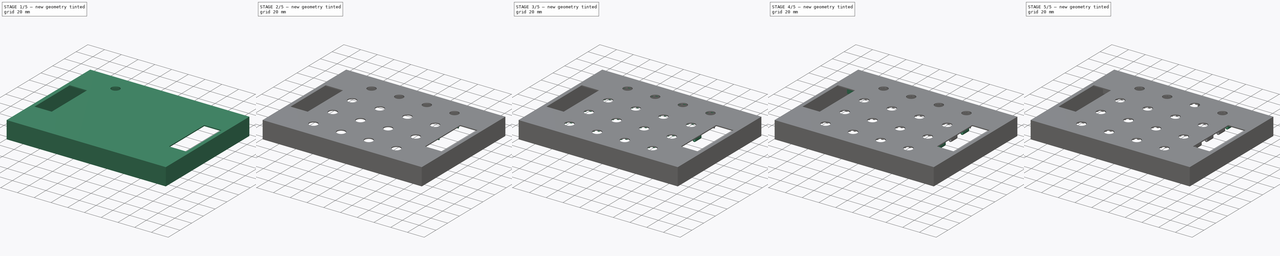
[diagram: build sequence overview — one tinted view per stage of 5, left to right]
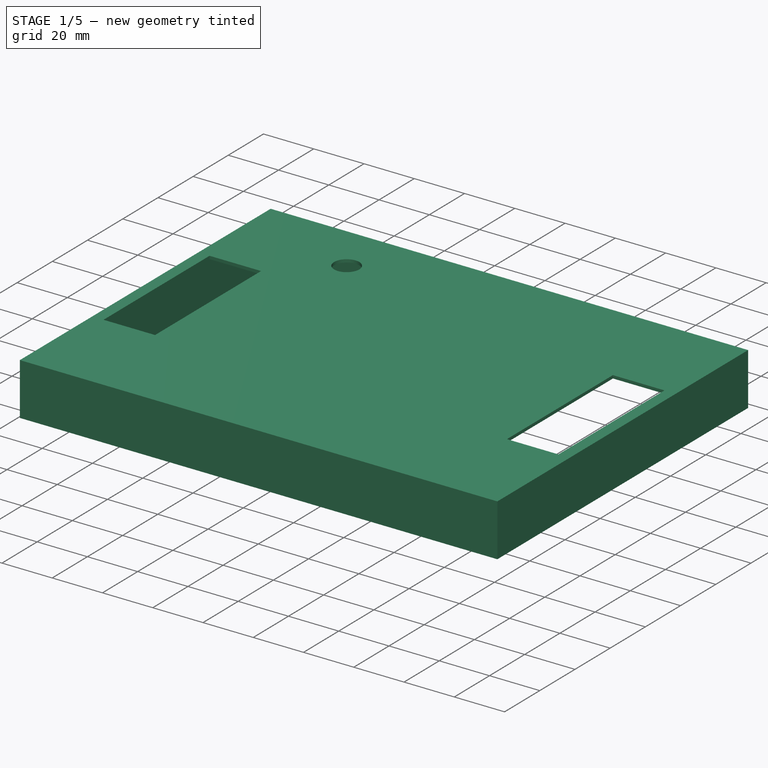
[diagram: stage 1 of 5 — iso view after this stage's code; geometry added in this stage tinted green]
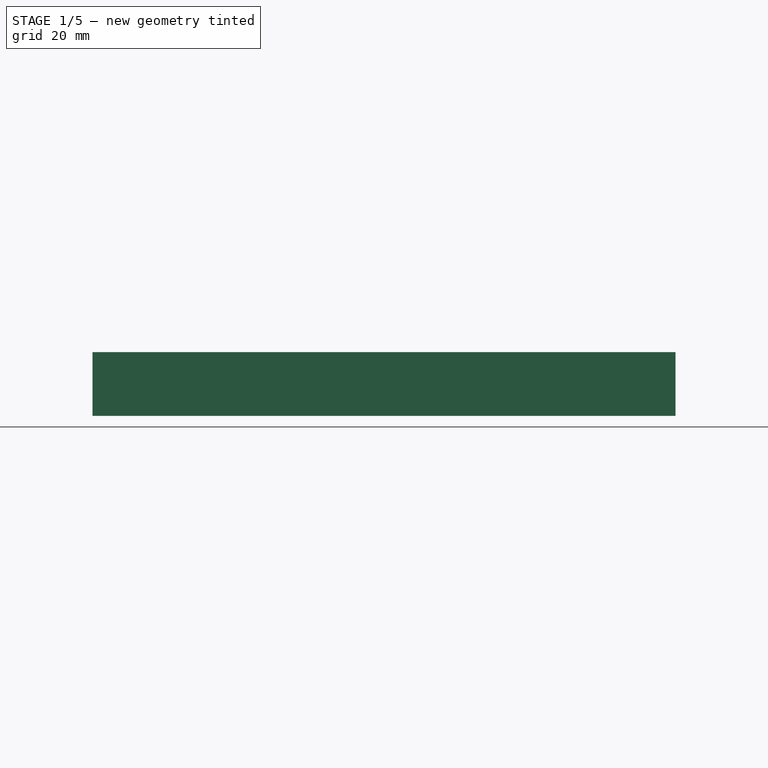
[diagram: stage 1 of 5 — front view after this stage's code; geometry added in this stage tinted green]
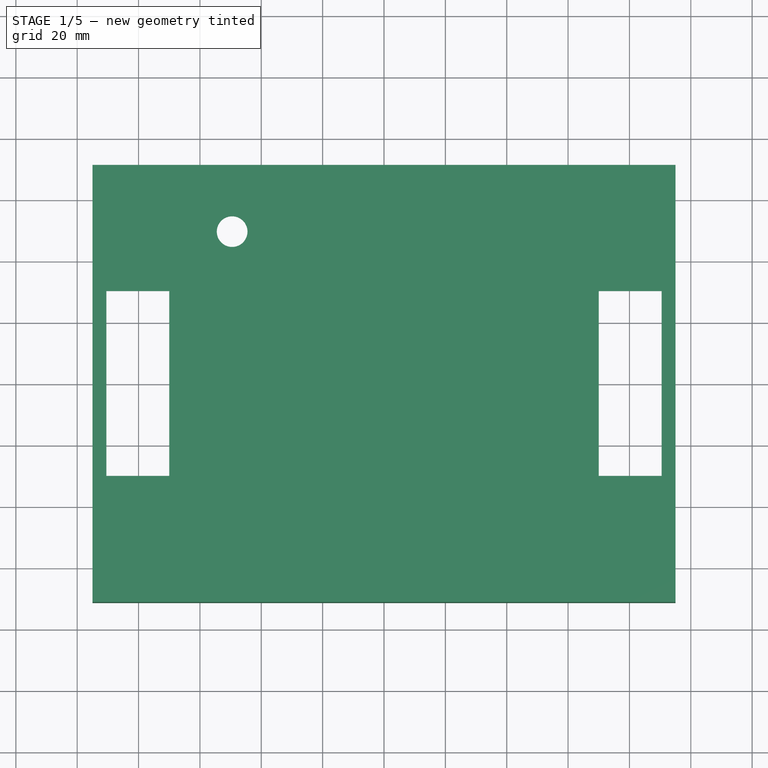
[diagram: stage 1 of 5 — top view after this stage's code; geometry added in this stage tinted green]
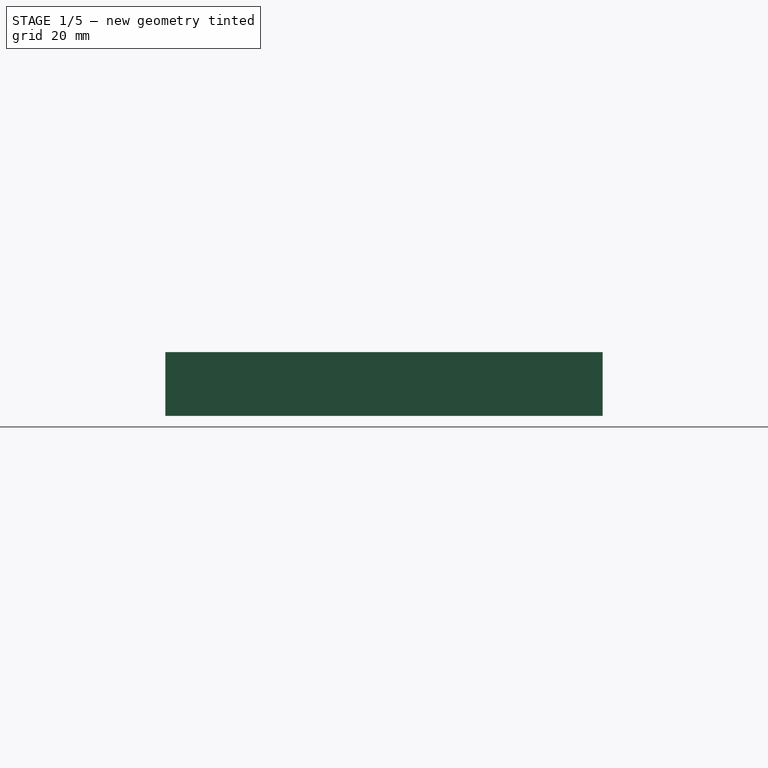
[diagram: stage 1 of 5 — right view after this stage's code; geometry added in this stage tinted green]
FCSTD DOCUMENT  (FreeCAD 1.0R39109 (Git))
Label: v1_all_clear
License: All rights reserved
LicenseURL: https://en.wikipedia.org/wiki/All_rights_reserved
objects: Sketcher::SketchObject×11, PartDesign::Pad×9, PartDesign::LinearPattern×7, PartDesign::MultiTransform×5, PartDesign::Mirrored×4, PartDesign::PolarPattern×2, PartDesign::Pocket×2, PartDesign::Plane×2, Spreadsheet::Sheet×1, PartDesign::Line×1, PartDesign::Chamfer×1, PartDesign::Body×1
note: 98 computed .brp shape members not serialized (recipe doc carries the construction recipe); baked Part::Feature solids carry a one-line shape summary decoded from their .brp

FEATURE [Sketcher::SketchObject] Sketch
  ArcFitTolerance = 1e-06
  AttachmentSupport = -> [XY_Plane]
  FullyConstrained = true
  MakeInternals = false
  MapMode = 5
  expr: Constraints[25] = <<sizes>>.insertDia
  expr: Constraints[8] = 2 * <<sizes>>.mfGrid
  expr: Constraints[9] = 2 * <<sizes>>.mfGrid
  sketch-geometry (14):
    g0: LineSegment [constr] StartX=-33 StartY=33 StartZ=0 EndX=-33 EndY=-33 EndZ=0
    g1: LineSegment [constr] StartX=-33 StartY=-33 StartZ=0 EndX=33 EndY=-33 EndZ=0
    g2: LineSegment [constr] StartX=33 StartY=-33 StartZ=0 EndX=33 EndY=33 EndZ=0
    g3: LineSegment [constr] StartX=33 StartY=33 StartZ=0 EndX=-33 EndY=33 EndZ=0
    g4: Circle CenterX=-33 CenterY=33 CenterZ=0 NormalX=0 NormalY=0 NormalZ=1 AngleXU=0 Radius=3
    g5: Circle CenterX=33 CenterY=33 CenterZ=0 NormalX=0 NormalY=0 NormalZ=1 AngleXU=0 Radius=3
    g6: Circle CenterX=33 CenterY=-33 CenterZ=0 NormalX=0 NormalY=0 NormalZ=1 AngleXU=0 Radius=3
    g7: Circle CenterX=-33 CenterY=-33 CenterZ=0 NormalX=0 NormalY=0 NormalZ=1 AngleXU=0 Radius=3
    g8: Circle CenterX=-33 CenterY=-33 CenterZ=0 NormalX=0 NormalY=0 NormalZ=1 AngleXU=0 Radius=2.1
    g9: Circle CenterX=-33 CenterY=33 CenterZ=0 NormalX=0 NormalY=0 NormalZ=1 AngleXU=0 Radius=2.1
    g10: Circle CenterX=33 CenterY=33 CenterZ=0 NormalX=0 NormalY=0 NormalZ=1 AngleXU=0 Radius=2.1
    g11: Circle CenterX=33 CenterY=-33 CenterZ=0 NormalX=0 NormalY=0 NormalZ=1 AngleXU=0 Radius=2.1
    g12: Circle CenterX=0 CenterY=0 CenterZ=0 NormalX=0 NormalY=0 NormalZ=1 AngleXU=0 Radius=3
    g13: Circle CenterX=0 CenterY=0 CenterZ=0 NormalX=0 NormalY=0 NormalZ=1 AngleXU=0 Radius=2.1
  constraints (31):
    c: Coincident(g0,g1)
    c: Coincident(g1,g2)
    c: Coincident(g2,g3)
    c: Coincident(g3,g0)
    c: Vertical(g0)
    c: Vertical(g2)
    c: Horizontal(g1)
    c: Horizontal(g3)
    c: Distance(g0,g2) = 66
    c: Distance(g1,g3) = 66
    c: Symmetric(g0,g1,g-1)
    c: Coincident(g4,g0)
    c: Coincident(g5,g2)
    c: Coincident(g6,g1)
    c: Coincident(g7,g0)
    c: Coincident(g8,g0)
    c: Coincident(g9,g0)
    c: Coincident(g10,g2)
    c: Coincident(g11,g1)
    c: Equal(g11,g10)
    c: Equal(g10,g9)
    c: Equal(g9,g8)
    c: Equal(g7,g4)
    c: Equal(g4,g5)
    c: Equal(g5,g6)
    c: Diameter(g11) = 4.2
    c: Diameter(g6) = 6
    c: Coincident(g12,g-1)
    c: Coincident(g13,g12)
    c: Equal(g13,g9)
    c: Equal(g12,g4)
FEATURE [Spreadsheet::Sheet] Spreadsheet  label="sizes"
  cells = A1='midifighter grid spacing; B1(mfGrid)=33; D1='height over pcb; E1(heightOver)=5; A2='encoder hole dia; B2(encoderHoleDia)=7.5; D2='pcb thickness; E2(pcbThickness)=1.6; A3='led ring dia; B3(ledRingDia)=24; D3='height under pcb; E3(heightUnder)=13; A4='led angle range; B4(ledAngleRange)=265; A5='led count; B5(ledCount)=11; D5='usb port width; E5(usbPortWidth)=12; A6='m3 insert dia; B6(insertDia)=4.2; D6='usb port height; E6=11; A7='led height; B7(ledHeight)=1.5; D7='button spacing; E7(buttonSpacing)=20; A8='rib extra gap; B8(ribExtraGap)=0.5; D8='button height under pcb; E8=4
FEATURE [Sketcher::SketchObject] Sketch001
  ArcFitTolerance = 1e-06
  AttachmentSupport = -> [XY_Plane]
  FullyConstrained = true
  MakeInternals = false
  MapMode = 5
  expr: Constraints[18] = <<sizes>>.buttonSpacing + 0.5
  expr: Constraints[19] = <<sizes>>.buttonSpacing * 3 + 0.25
  expr: Constraints[9] = 140 + 2 * <<sizes>>.buttonSpacing + 10
  sketch-geometry (12):
    g0: LineSegment StartX=-95 StartY=71.25 StartZ=0 EndX=-95 EndY=-71.25 EndZ=0
    g1: LineSegment StartX=-95 StartY=-71.25 StartZ=0 EndX=95 EndY=-71.25 EndZ=0
    g2: LineSegment StartX=95 StartY=-71.25 StartZ=0 EndX=95 EndY=71.25 EndZ=0
    g3: LineSegment StartX=95 StartY=71.25 StartZ=0 EndX=-95 EndY=71.25 EndZ=0
    g4: LineSegment StartX=-70 StartY=30.125 StartZ=0 EndX=-90.5 EndY=30.125 EndZ=0
    g5: LineSegment StartX=-90.5 StartY=30.125 StartZ=0 EndX=-90.5 EndY=-30.125 EndZ=0
    g6: LineSegment StartX=-90.5 StartY=-30.125 StartZ=0 EndX=-70 EndY=-30.125 EndZ=0
    g7: LineSegment StartX=-70 StartY=-30.125 StartZ=0 EndX=-70 EndY=30.125 EndZ=0
    g8: LineSegment StartX=70 StartY=30.125 StartZ=0 EndX=70 EndY=-30.125 EndZ=0
    g9: LineSegment StartX=70 StartY=-30.125 StartZ=0 EndX=90.5 EndY=-30.125 EndZ=0
    g10: LineSegment StartX=90.5 StartY=-30.125 StartZ=0 EndX=90.5 EndY=30.125 EndZ=0
    g11: LineSegment StartX=90.5 StartY=30.125 StartZ=0 EndX=70 EndY=30.125 EndZ=0
  constraints (33):
    c: Coincident(g0,g1)
    c: Coincident(g1,g2)
    c: Coincident(g2,g3)
    c: Coincident(g3,g0)
    c: Vertical(g0)
    c: Vertical(g2)
    c: Horizontal(g1)
    c: Horizontal(g3)
    c: Symmetric(g0,g1,g-1)
    c: DistanceX(g3,g3) = 190
    c: DistanceY(g0,g0) = 142.5
    c: Coincident(g4,g5)
    c: Coincident(g5,g6)
    c: Coincident(g6,g7)
    c: Coincident(g7,g4)
    c: Horizontal(g4)
    c: Horizontal(g6)
    c: Vertical(g5)
    c: Distance(g5,g7) = 20.5
    c: Distance(g4,g6) = 60.25
    c: Symmetric(g6,g4,g-1)
    c: DistanceX(g6) = -70
    c: Coincident(g8,g9)
    c: Coincident(g9,g10)
    c: Coincident(g10,g11)
    c: Coincident(g11,g8)
    c: Vertical(g8)
    c: Vertical(g10)
    c: Horizontal(g9)
    c: Horizontal(g11)
    c: PointOnObject(g8,g6)
    c: Equal(g9,g6)
    c: Symmetric(g4,g8,g-2)
FEATURE [PartDesign::Pad] Pad001
  Direction = (0,0,1)
  Length = 1.2
  Length2 = 10
  Profile = -> Sketch001
  ReferenceAxis = -> Sketch001 [N_Axis]
  Refine = true
  Suppressed = false
  Type = 0
FEATURE [Sketcher::SketchObject] Sketch002
  ArcFitTolerance = 1e-06
  AttachmentSupport = -> [XY_Plane]
  FullyConstrained = true
  MakeInternals = false
  MapMode = 5
  expr: Constraints[1] = -1.5 * <<sizes>>.mfGrid
  expr: Constraints[2] = 1.5 * <<sizes>>.mfGrid
  sketch-geometry (1):
    g0: Circle CenterX=-49.5 CenterY=49.5 CenterZ=0 NormalX=0 NormalY=0 NormalZ=1 AngleXU=0 Radius=5
  constraints (3):
    c: Diameter(g0) = 10
    c: DistanceX(g0) = -49.5
    c: DistanceY(g0) = 49.5
FEATURE [PartDesign::LinearPattern] LinearPattern
  Direction = -> Sketch002 [H_Axis]
  Length = 99
  Mode = 1
  Occurrences = 4
  Offset = 33
  Refine = true
  Suppressed = false
  TransformMode = 0
  expr: Offset = <<sizes>>.mfGrid
FEATURE [PartDesign::LinearPattern] LinearPattern001
  Direction = -> Sketch002 [V_Axis]
  Length = 99
  Mode = 1
  Occurrences = 4
  Offset = 33
  Refine = true
  Reversed = true
  Suppressed = false
  TransformMode = 0
  expr: Offset = <<sizes>>.mfGrid
FEATURE [Sketcher::SketchObject] Sketch003
  ArcFitTolerance = 1e-06
  AttachmentSupport = -> [XY_Plane]
  FullyConstrained = true
  MakeInternals = false
  MapMode = 5
  expr: Constraints[19] = <<sizes>>.mfGrid * 2 - <<sizes>>.insertDia * 1.2
  expr: Constraints[30] = -0.6 * <<sizes>>.insertDia
  expr: Constraints[41] = 1.2 * <<sizes>>.insertDia
  expr: Constraints[9] = 2 * <<sizes>>.mfGrid
  sketch-geometry (20):
    g0: LineSegment [constr] StartX=-33 StartY=33 StartZ=0 EndX=-33 EndY=-33 EndZ=0
    g1: LineSegment [constr] StartX=-33 StartY=-33 StartZ=0 EndX=33 EndY=-33 EndZ=0
    g2: LineSegment [constr] StartX=33 StartY=-33 StartZ=0 EndX=33 EndY=33 EndZ=0
    g3: LineSegment [constr] StartX=33 StartY=33 StartZ=0 EndX=-33 EndY=33 EndZ=0
    g4: LineSegment StartX=-30.48 StartY=33.6 StartZ=0 EndX=-30.48 EndY=32.4 EndZ=0
    g5: LineSegment StartX=-30.48 StartY=32.4 StartZ=0 EndX=30.48 EndY=32.4 EndZ=0
    g6: LineSegment StartX=30.48 StartY=32.4 StartZ=0 EndX=30.48 EndY=33.6 EndZ=0
    g7: LineSegment StartX=30.48 StartY=33.6 StartZ=0 EndX=-30.48 EndY=33.6 EndZ=0
    g8: LineSegment StartX=-2.52 StartY=0.6 StartZ=0 EndX=-66 EndY=0.6 EndZ=0
    g9: LineSegment StartX=-66 StartY=0.6 StartZ=0 EndX=-66 EndY=-0.6 EndZ=0
    g10: LineSegment StartX=-66 StartY=-0.6 StartZ=0 EndX=-2.52 EndY=-0.6 EndZ=0
    g11: LineSegment StartX=-2.52 StartY=-0.6 StartZ=0 EndX=-2.52 EndY=0.6 EndZ=0
    g12: LineSegment StartX=-66 StartY=33.6 StartZ=0 EndX=-66 EndY=32.4 EndZ=0
    g13: LineSegment StartX=-66 StartY=32.4 StartZ=0 EndX=-35.52 EndY=32.4 EndZ=0
    g14: LineSegment StartX=-35.52 StartY=32.4 StartZ=0 EndX=-35.52 EndY=33.6 EndZ=0
    g15: LineSegment StartX=-35.52 StartY=33.6 StartZ=0 EndX=-66 EndY=33.6 EndZ=0
    g16: LineSegment StartX=35.52 StartY=33.6 StartZ=0 EndX=35.52 EndY=32.4 EndZ=0
    g17: LineSegment StartX=35.52 StartY=32.4 StartZ=0 EndX=66 EndY=32.4 EndZ=0
    g18: LineSegment StartX=66 StartY=32.4 StartZ=0 EndX=66 EndY=33.6 EndZ=0
    g19: LineSegment StartX=66 StartY=33.6 StartZ=0 EndX=35.52 EndY=33.6 EndZ=0
  constraints (54):
    c: Coincident(g0,g1)
    c: Coincident(g1,g2)
    c: Coincident(g2,g3)
    c: Coincident(g3,g0)
    c: Vertical(g0)
    c: Vertical(g2)
    c: Horizontal(g1)
    c: Horizontal(g3)
    c: Symmetric(g0,g1,g-1)
    c: DistanceX(g3,g3) = 66
    c: Equal(g3,g0)
    c: Coincident(g4,g5)
    c: Coincident(g5,g6)
    c: Coincident(g6,g7)
    c: Coincident(g7,g4)
    c: Vertical(g4)
    c: Horizontal(g5)
    c: Symmetric(g5,g6,g3)
    c: Symmetric(g4,g6,g-2)
    c: DistanceX(g7,g7) = 60.96
    c: Coincident(g8,g9)
    c: Coincident(g9,g10)
    c: Coincident(g10,g11)
    c: Coincident(g11,g8)
    c: Horizontal(g8)
    c: Horizontal(g10)
    c: Vertical(g11)
    c: Symmetric(g9,g8,g-1)
    c: DistanceY(g4,g4) = 1.2
    c: DistanceY(g9,g9) = 1.2
    c: DistanceX(g8) = -2.52
    c: Coincident(g12,g13)
    c: Coincident(g13,g14)
    c: Coincident(g14,g15)
    c: Coincident(g15,g12)
    c: Vertical(g12)
    c: Vertical(g14)
    c: Horizontal(g13)
    c: Horizontal(g15)
    c: PointOnObject(g13,g5)
    c: PointOnObject(g14,g7)
    c: Distance(g14,g4) = 5.04
    c: PointOnObject(g8,g12)
    c: Coincident(g16,g17)
    c: Coincident(g17,g18)
    c: Coincident(g18,g19)
    c: Coincident(g19,g16)
    c: Vertical(g16)
    c: Vertical(g18)
    c: Horizontal(g17)
    c: PointOnObject(g16,g5)
    c: Symmetric(g16,g14,g-2)
    c: Symmetric(g12,g18,g-2)
    c: DistanceX(g8) = -66
FEATURE [Sketcher::SketchObject] Sketch004
  ArcFitTolerance = 1e-06
  AttachmentSupport = -> [XY_Plane]
  FullyConstrained = true
  MakeInternals = false
  MapMode = 5
  expr: Constraints[0] = <<sizes>>.ledAngleRange
  expr: Constraints[8] = <<sizes>>.mfGrid * 1.5
  expr: Constraints[9] = <<sizes>>.ledRingDia
  sketch-geometry (6):
    g0: ArcOfCircle [constr] CenterX=-49.5 CenterY=49.5 CenterZ=0 NormalX=0 NormalY=0 NormalZ=1 AngleXU=0 Radius=12 StartAngle=5.54142 EndAngle=10.1665
    g1: LineSegment [constr] StartX=-49.5 StartY=49.5 StartZ=0 EndX=-49.5 EndY=0 EndZ=0
    g2: LineSegment [constr] StartX=-49.5 StartY=49.5 StartZ=0 EndX=0 EndY=49.5 EndZ=0
    g3: LineSegment [constr] StartX=-58.3473 StartY=41.3929 StartZ=0 EndX=-40.6527 EndY=41.3929 EndZ=0
    g4: Circle [constr] CenterX=-58.3473 CenterY=41.3929 CenterZ=0 NormalX=0 NormalY=0 NormalZ=1 AngleXU=0 Radius=3.5
    g5: Circle CenterX=-58.3473 CenterY=41.3929 CenterZ=0 NormalX=0 NormalY=0 NormalZ=1 AngleXU=0 Radius=1.5
  constraints (17):
    c: Angle(g0) = 4.62512
    c: Coincident(g1,g0)
    c: PointOnObject(g1,g-1)
    c: Vertical(g1)
    c: Coincident(g2,g0)
    c: PointOnObject(g2,g-2)
    c: Horizontal(g2)
    c: Equal(g2,g1)
    c: DistanceY(g1,g1) = 49.5
    c: Diameter(g0) = 24
    c: Coincident(g3,g0)
    c: Coincident(g3,g0)
    c: Horizontal(g3)
    c: Diameter(g4) = 7
    c: Coincident(g4,g0)
    c: Diameter(g5) = 3
    c: Coincident(g5,g0)
FEATURE [PartDesign::Line] DatumLine
  AttacherType = Attacher::AttachEngineLine
  AttachmentOffset = pos=(-49.5,49.5,0) rot=(0,0,1;0rad)
  AttachmentSupport = -> [Z_Axis]
  Length = 20
  MapMode = 29
  Placement = pos=(-49.5,49.5,0) rot=(0,0,1;0rad)
  ResizeMode = 0
  expr: .AttachmentOffset.Base.x = -<<sizes>>.mfGrid * 1.5
  expr: .AttachmentOffset.Base.y = <<sizes>>.mfGrid * 1.5
FEATURE [PartDesign::PolarPattern] PolarPattern001
  Angle = 265
  Axis = -> DatumLine
  Mode = 0
  Occurrences = 11
  Offset = 120
  Refine = true
  Reversed = true
  Suppressed = false
  TransformMode = 0
  expr: Angle = <<sizes>>.ledAngleRange
  expr: Occurrences = <<sizes>>.ledCount
FEATURE [PartDesign::LinearPattern] LinearPattern002
  Direction = -> Sketch004 [H_Axis]
  Length = 99
  Mode = 1
  Occurrences = 4
  Offset = 33
  Refine = true
  Suppressed = false
  TransformMode = 0
  expr: Offset = <<sizes>>.mfGrid
FEATURE [PartDesign::LinearPattern] LinearPattern003
  Direction = -> Sketch004 [V_Axis]
  Length = 99
  Mode = 1
  Occurrences = 4
  Offset = 33
  Refine = true
  Reversed = true
  Suppressed = false
  TransformMode = 0
  expr: Offset = <<sizes>>.mfGrid
FEATURE [Sketcher::SketchObject] Sketch005
  ArcFitTolerance = 1e-06
  AttachmentSupport = -> [XZ_Plane]
  FullyConstrained = true
  MakeInternals = false
  MapMode = 5
  Placement = pos=(0,0,0) rot=(1,0,0;1.5708rad)
  sketch-geometry (11):
    g0: Circle [constr] CenterX=68 CenterY=-2.25 CenterZ=0 NormalX=0 NormalY=0 NormalZ=1 AngleXU=0 Radius=2
    g1: LineSegment [constr] StartX=0 StartY=-0.25 StartZ=0 EndX=68 EndY=-0.25 EndZ=0
    g2: LineSegment [constr] StartX=0 StartY=-4.25 StartZ=0 EndX=68 EndY=-4.25 EndZ=0
    g3: Circle [constr] CenterX=-68 CenterY=-2.25 CenterZ=0 NormalX=0 NormalY=0 NormalZ=1 AngleXU=0 Radius=2
    g4: LineSegment [constr] StartX=-68 StartY=-2.25 StartZ=0 EndX=68 EndY=-2.25 EndZ=0
    g5: Circle CenterX=68 CenterY=-2.25 CenterZ=0 NormalX=0 NormalY=0 NormalZ=1 AngleXU=0 Radius=1.1
    g6: Circle [constr] CenterX=-68 CenterY=-2.25 CenterZ=0 NormalX=0 NormalY=0 NormalZ=1 AngleXU=0 Radius=1
    g7: ArcOfCircle CenterX=68 CenterY=-2.25 CenterZ=0 NormalX=0 NormalY=0 NormalZ=1 AngleXU=0 Radius=2 StartAngle=3.14159 EndAngle=6.28319
    g8: LineSegment StartX=70 StartY=-2.25 StartZ=0 EndX=70 EndY=0 EndZ=0
    g9: LineSegment StartX=70 StartY=0 StartZ=0 EndX=66 EndY=0 EndZ=0
    g10: LineSegment StartX=66 StartY=0 StartZ=0 EndX=66 EndY=-2.25 EndZ=0
  constraints (27):
    c: PointOnObject(g1,g-2)
    c: Horizontal(g1)
    c: Tangent(g1,g0) = 1.5708
    c: PointOnObject(g2,g-2)
    c: Tangent(g2,g0) = -1.5708
    c: Horizontal(g2)
    c: DistanceY(g2) = -4.25
    c: Equal(g3,g0)
    c: Coincident(g4,g3)
    c: Coincident(g4,g0)
    c: Symmetric(g3,g0,g-2)
    c: Diameter(g5) = 2.2
    c: Coincident(g5,g0)
    c: Diameter(g6) = 2
    c: Coincident(g6,g3)
    c: Coincident(g7,g0)
    c: PointOnObject(g7,g0)
    c: Tangent(g7,g8) = -1.5708
    c: Coincident(g8,g9)
    c: Horizontal(g9)
    c: Coincident(g9,g10)
    c: Tangent(g10,g7) = -1.5708
    c: Vertical(g8)
    c: Vertical(g10)
    c: DistanceY(g9) = 0
    c: DistanceX(g8) = 70
    c: Diameter(g0) = 4
FEATURE [Sketcher::SketchObject] Sketch009
  ArcFitTolerance = 1e-06
  AttachmentSupport = -> [XY_Plane]
  FullyConstrained = true
  MakeInternals = false
  MapMode = 5
  sketch-geometry (8):
    g0: LineSegment StartX=-93 StartY=69.25 StartZ=0 EndX=-93 EndY=-69.25 EndZ=0
    g1: LineSegment StartX=-93 StartY=-69.25 StartZ=0 EndX=93 EndY=-69.25 EndZ=0
    g2: LineSegment StartX=93 StartY=-69.25 StartZ=0 EndX=93 EndY=69.25 EndZ=0
    g3: LineSegment StartX=93 StartY=69.25 StartZ=0 EndX=-93 EndY=69.25 EndZ=0
    g4: LineSegment StartX=-95 StartY=71.25 StartZ=0 EndX=-95 EndY=-71.25 EndZ=0
    g5: LineSegment StartX=-95 StartY=-71.25 StartZ=0 EndX=95 EndY=-71.25 EndZ=0
    g6: LineSegment StartX=95 StartY=-71.25 StartZ=0 EndX=95 EndY=71.25 EndZ=0
    g7: LineSegment StartX=95 StartY=71.25 StartZ=0 EndX=-95 EndY=71.25 EndZ=0
  constraints (22):
    c: Coincident(g0,g1)
    c: Coincident(g1,g2)
    c: Coincident(g2,g3)
    c: Coincident(g3,g0)
    c: Vertical(g0)
    c: Vertical(g2)
    c: Horizontal(g1)
    c: Horizontal(g3)
    c: Coincident(g4,g5)
    c: Coincident(g5,g6)
    c: Coincident(g6,g7)
    c: Coincident(g7,g4)
    c: Vertical(g4)
    c: Vertical(g6)
    c: Horizontal(g5)
    c: Horizontal(g7)
    c: Symmetric(g4,g5,g-1)
    c: Symmetric(g0,g1,g-1)
    c: DistanceY(g4,g4) = 142.5
    c: DistanceX(g7,g7) = 190
    c: DistanceX(g3,g3) = 186
    c: DistanceY(g0,g0) = 138.5
FEATURE [PartDesign::Pad] Pad006
  BaseFeature = -> Pad001
  Direction = (0,0,1)
  Length = 19.6
  Length2 = 10
  Profile = -> Sketch009
  ReferenceAxis = -> Sketch009 [N_Axis]
  Refine = true
  Reversed = true
  Suppressed = false
  Type = 0
  expr: Length = <<sizes>>.heightOver + <<sizes>>.pcbThickness + <<sizes>>.heightUnder
FEATURE [PartDesign::Pad] Pad
  BaseFeature = -> Pad006
  Direction = (0,0,1)
  Length = 5
  Length2 = 10
  Profile = -> Sketch
  ReferenceAxis = -> Sketch [N_Axis]
  Refine = true
  Reversed = true
  Suppressed = false
  Type = 0
  expr: Length = <<sizes>>.heightOver
FEATURE [PartDesign::Pocket] Pocket
  BaseFeature = -> Pad
  Direction = (0,0,-1)
  Length = 5
  Length2 = 5
  Midplane = true
  Profile = -> Sketch002
  ReferenceAxis = -> Sketch002 [N_Axis]
  Refine = true
  Suppressed = false
  Type = 0
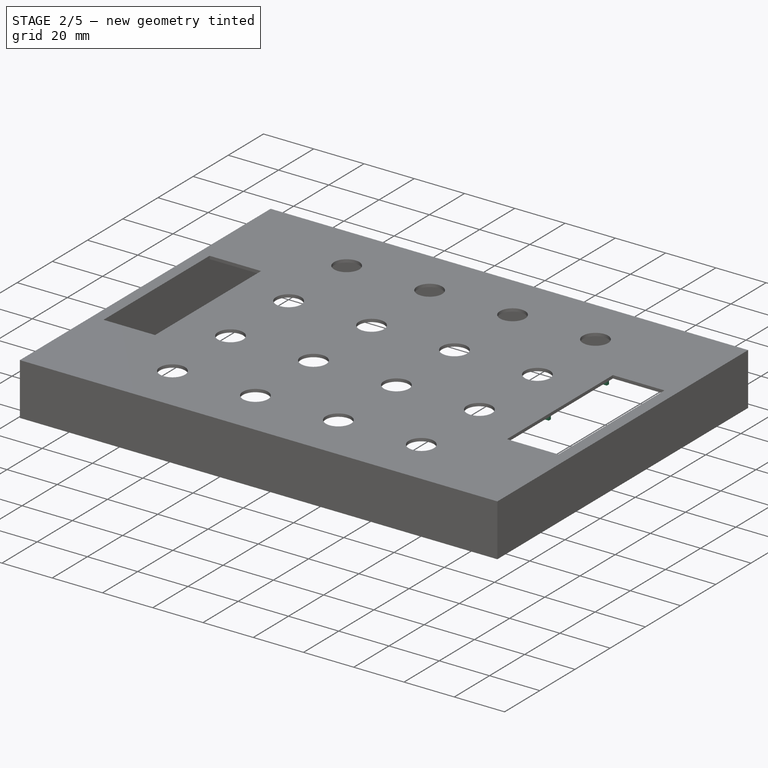
[diagram: stage 2 of 5 — iso view after this stage's code; geometry added in this stage tinted green]
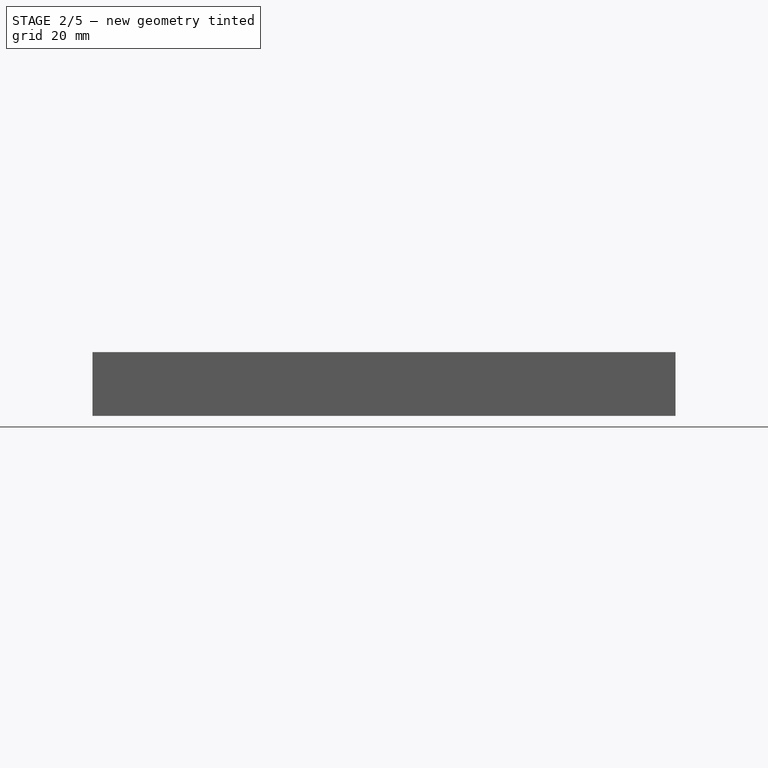
[diagram: stage 2 of 5 — front view after this stage's code; geometry added in this stage tinted green]
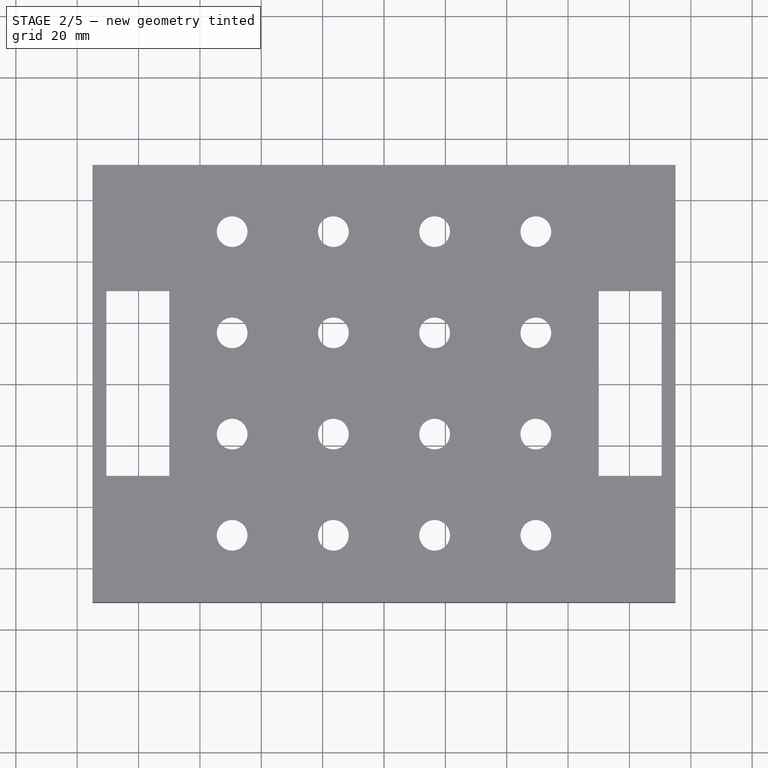
[diagram: stage 2 of 5 — top view after this stage's code; geometry added in this stage tinted green]
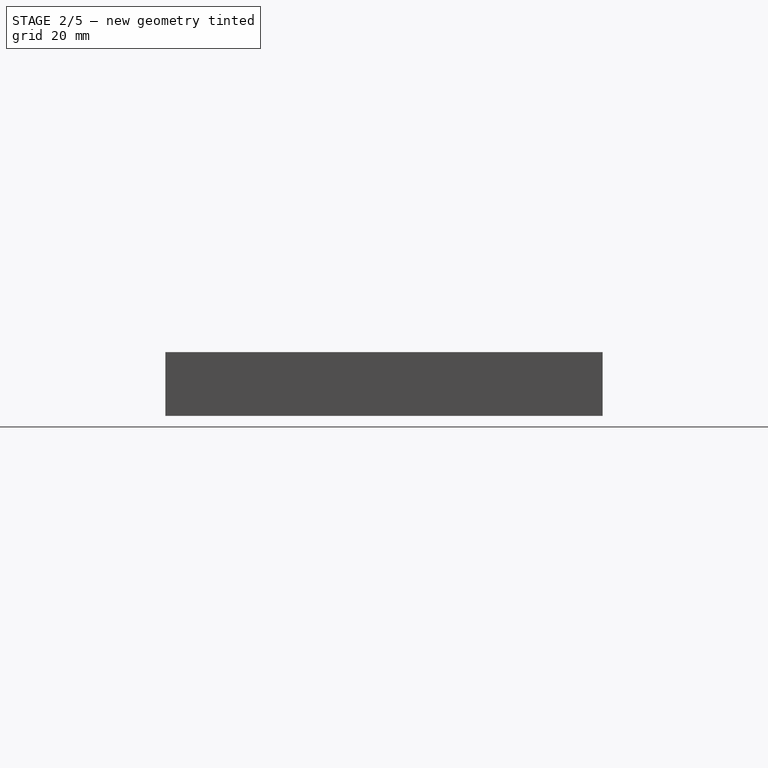
[diagram: stage 2 of 5 — right view after this stage's code; geometry added in this stage tinted green]
FEATURE [PartDesign::MultiTransform] MultiTransform
  BaseFeature = -> Pocket
  Originals = -> [Pocket]
  Refine = true
  Suppressed = false
  TransformMode = 0
  Transformations = -> [LinearPattern,LinearPattern001]
FEATURE [PartDesign::Pad] Pad002
  BaseFeature = -> MultiTransform
  Direction = (0,0,1)
  Length = 4.5
  Length2 = 10
  Profile = -> Sketch003
  ReferenceAxis = -> Sketch003 [N_Axis]
  Refine = true
  Reversed = true
  Suppressed = false
  Type = 0
  expr: Length = <<sizes>>.heightOver - <<sizes>>.ribExtraGap
FEATURE [PartDesign::PolarPattern] PolarPattern
  Angle = 360
  Axis = -> Sketch003 [N_Axis]
  BaseFeature = -> Pad002
  Mode = 0
  Occurrences = 4
  Offset = 120
  Originals = -> [Pad002]
  Refine = true
  Suppressed = false
  TransformMode = 0
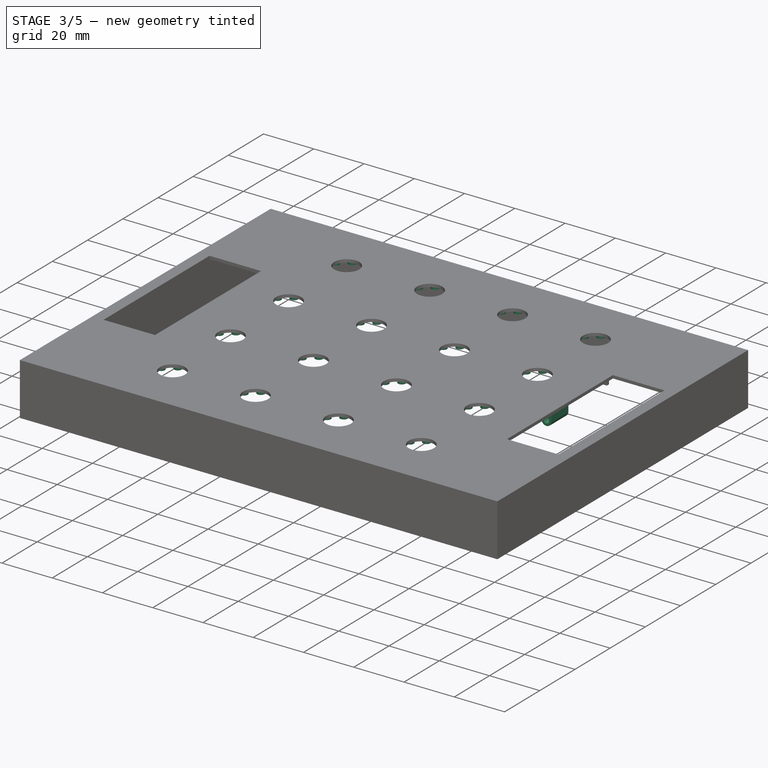
[diagram: stage 3 of 5 — iso view after this stage's code; geometry added in this stage tinted green]
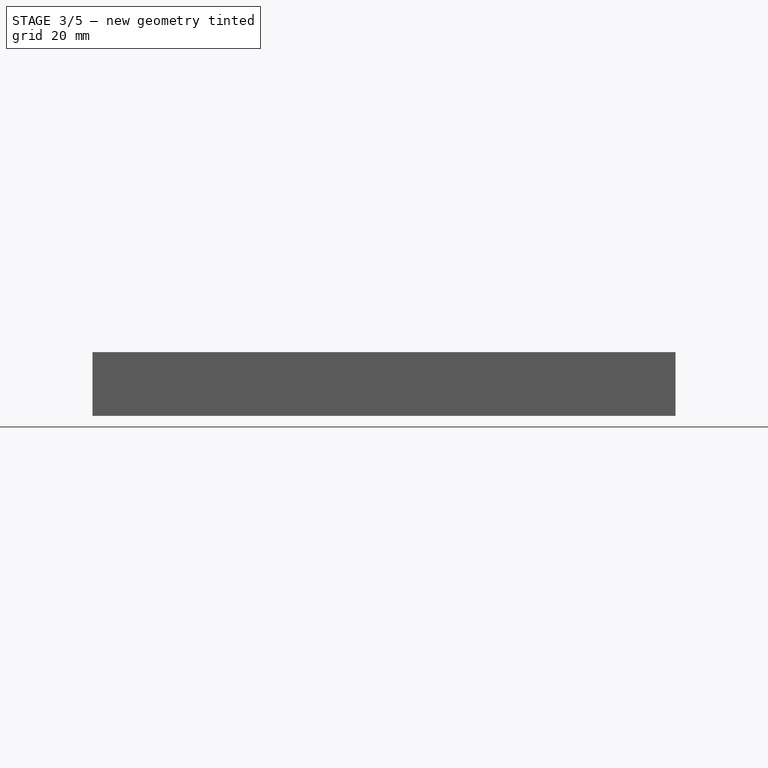
[diagram: stage 3 of 5 — front view after this stage's code; geometry added in this stage tinted green]
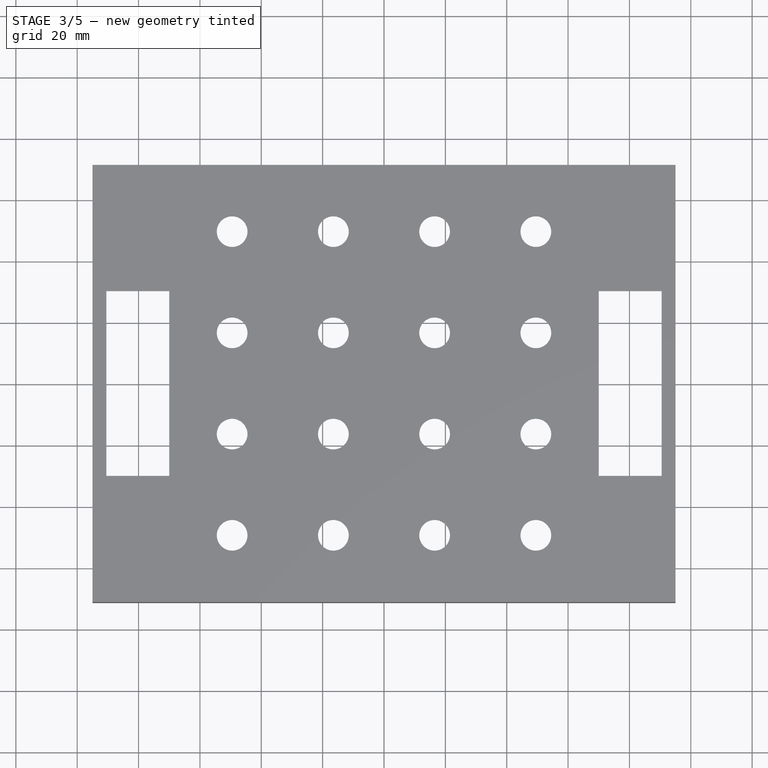
[diagram: stage 3 of 5 — top view after this stage's code; geometry added in this stage tinted green]
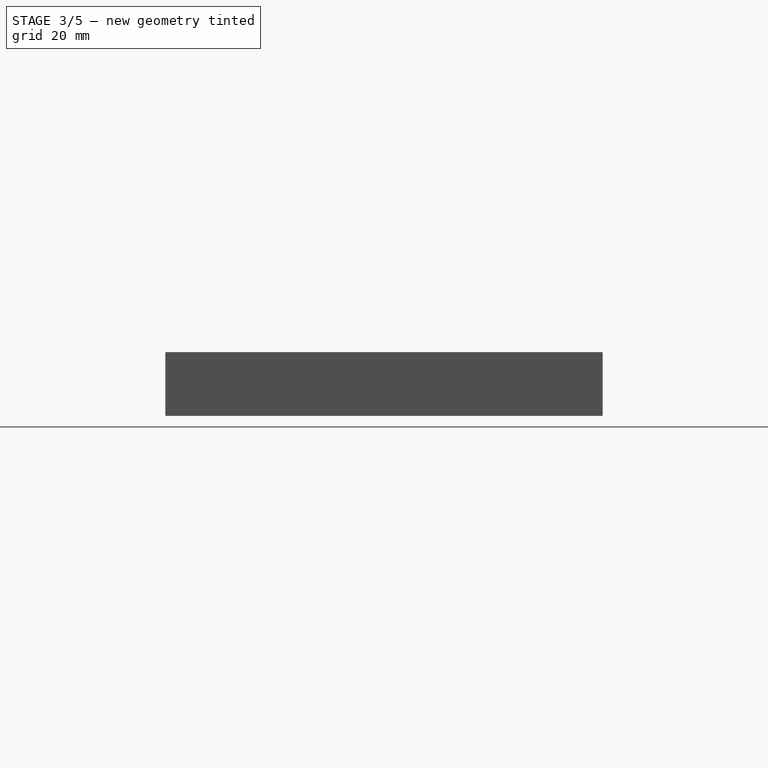
[diagram: stage 3 of 5 — right view after this stage's code; geometry added in this stage tinted green]
FEATURE [PartDesign::Pad] Pad003
  BaseFeature = -> PolarPattern
  Direction = (0,0,1)
  Length = 3.5
  Length2 = 10
  Profile = -> Sketch004
  ReferenceAxis = -> Sketch004 [N_Axis]
  Refine = true
  Reversed = true
  Suppressed = false
  Type = 0
  expr: Length = <<sizes>>.heightOver - <<sizes>>.ledHeight
FEATURE [PartDesign::MultiTransform] MultiTransform001
  BaseFeature = -> Pad003
  Originals = -> [Pad003]
  Refine = true
  Suppressed = false
  TransformMode = 0
  Transformations = -> [PolarPattern001,LinearPattern002,LinearPattern003]
FEATURE [PartDesign::Chamfer] Chamfer
  Angle = 45
  Base = -> MultiTransform001 [Edge783,Edge775,Edge892,Edge765,Edge774]
  BaseFeature = -> MultiTransform001
  ChamferType = 0
  FlipDirection = false
  Refine = true
  Size = 0.7
  Size2 = 1
  SupportTransform = false
  Suppressed = false
  UseAllEdges = false
FEATURE [PartDesign::Pad] Pad004
  BaseFeature = -> Chamfer
  Direction = (0,-1,2e-16)
  Length = 9.6
  Length2 = 10
  Midplane = true
  Profile = -> Sketch005
  ReferenceAxis = -> Sketch005 [N_Axis]
  Refine = true
  Suppressed = false
  Type = 0
  expr: Length = <<sizes>>.buttonSpacing * 0.5 - 0.4
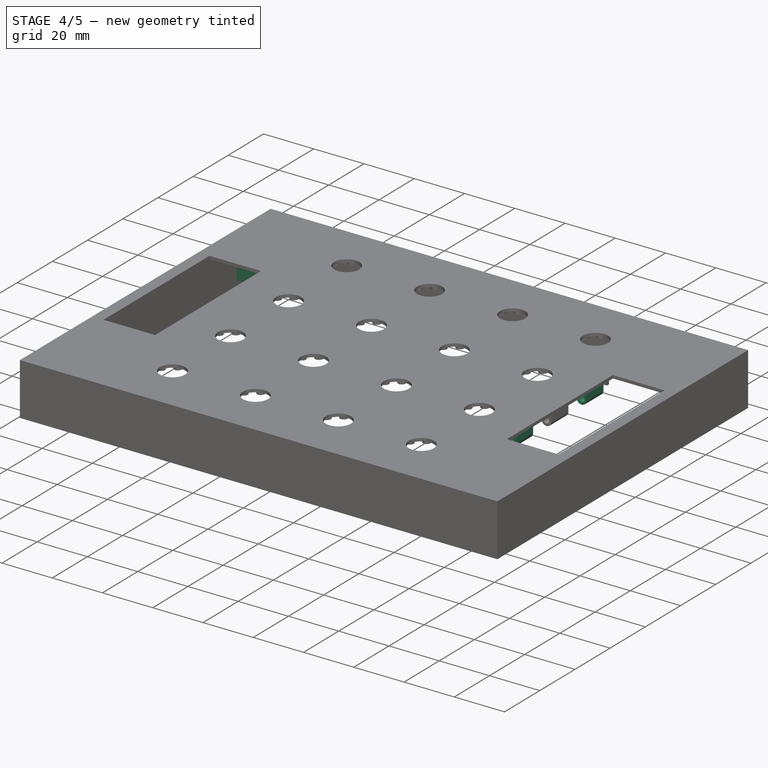
[diagram: stage 4 of 5 — iso view after this stage's code; geometry added in this stage tinted green]
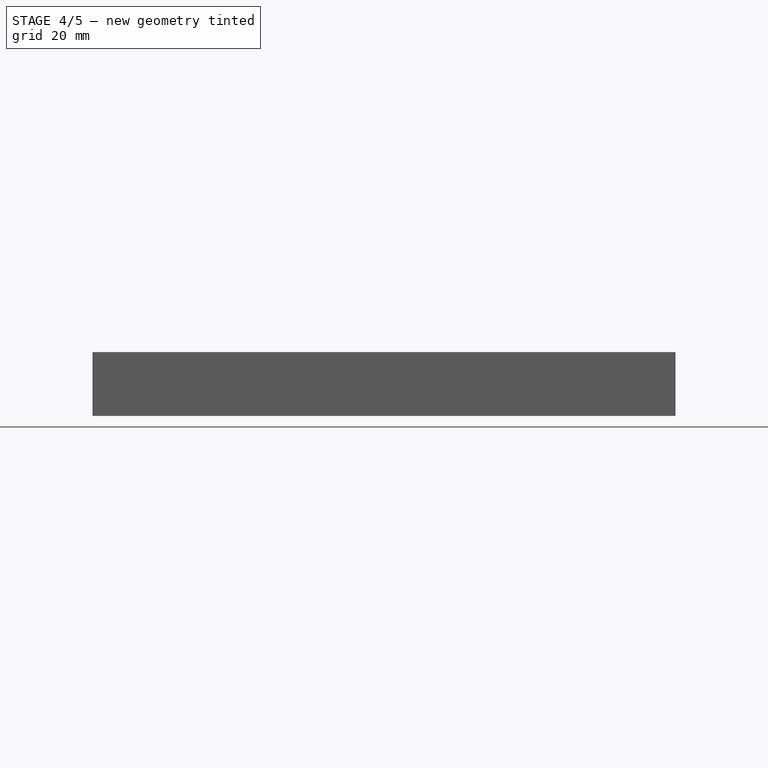
[diagram: stage 4 of 5 — front view after this stage's code; geometry added in this stage tinted green]
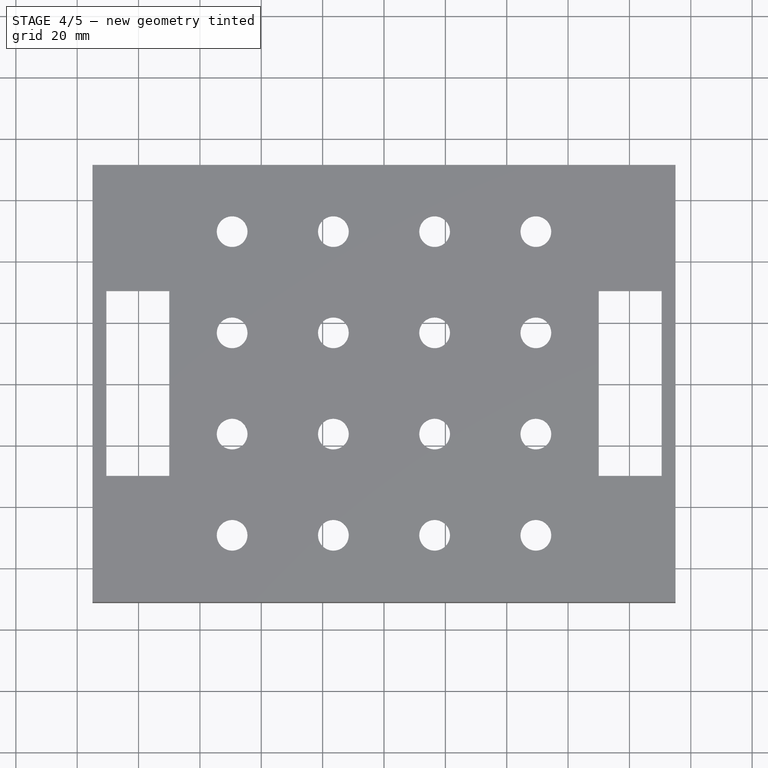
[diagram: stage 4 of 5 — top view after this stage's code; geometry added in this stage tinted green]
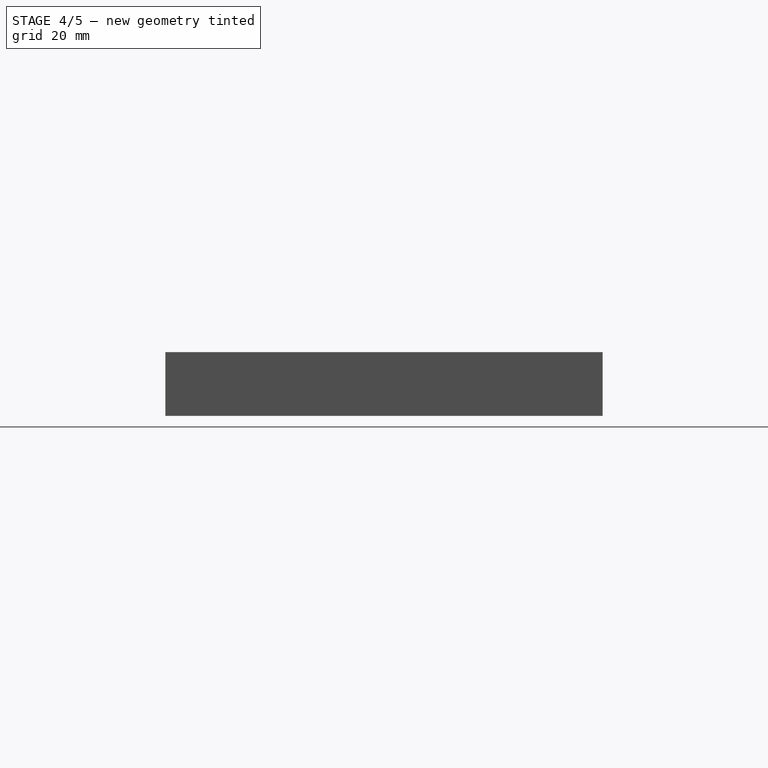
[diagram: stage 4 of 5 — right view after this stage's code; geometry added in this stage tinted green]
FEATURE [PartDesign::LinearPattern] LinearPattern004
  Direction = -> Sketch005 [N_Axis]
  Length = 20
  Mode = 1
  Occurrences = 2
  Offset = 20
  Refine = true
  Suppressed = false
  TransformMode = 0
  expr: Offset = <<sizes>>.buttonSpacing
FEATURE [PartDesign::Mirrored] Mirrored
  MirrorPlane = -> XZ_Plane
  Refine = true
  Suppressed = false
  TransformMode = 0
FEATURE [PartDesign::Mirrored] Mirrored001
  MirrorPlane = -> YZ_Plane
  Refine = true
  Suppressed = false
  TransformMode = 0
FEATURE [PartDesign::MultiTransform] MultiTransform002
  BaseFeature = -> Pad004
  Originals = -> [Pad004]
  Refine = true
  Suppressed = false
  TransformMode = 0
  Transformations = -> [LinearPattern004,Mirrored001,Mirrored]
FEATURE [PartDesign::Plane] DatumPlane
  AttachmentOffset = pos=(0,0,30.4) rot=(0,0,1;0rad)
  AttachmentSupport = -> [XZ_Plane]
  Length = 209.494
  MapMode = 5
  Placement = pos=(0,-30.4,6.8e-15) rot=(1,0,0;1.5708rad)
  ResizeMode = 0
  Width = 69.4936
  expr: .AttachmentOffset.Base.z = 1.5 * <<sizes>>.buttonSpacing + 0.4
FEATURE [Sketcher::SketchObject] Sketch010
  ArcFitTolerance = 1e-06
  AttachmentSupport = -> [DatumPlane]
  FullyConstrained = true
  MakeInternals = false
  MapMode = 5
  Placement = pos=(0,-30.4,6.8e-15) rot=(1,0,0;1.5708rad)
  sketch-geometry (11):
    g0: Circle [constr] CenterX=68 CenterY=-2.25 CenterZ=0 NormalX=0 NormalY=0 NormalZ=1 AngleXU=0 Radius=2
    g1: LineSegment [constr] StartX=0 StartY=-0.25 StartZ=0 EndX=68 EndY=-0.25 EndZ=0
    g2: LineSegment [constr] StartX=0 StartY=-4.25 StartZ=0 EndX=68 EndY=-4.25 EndZ=0
    g3: Circle [constr] CenterX=-68 CenterY=-2.25 CenterZ=0 NormalX=0 NormalY=0 NormalZ=1 AngleXU=0 Radius=2
    g4: LineSegment [constr] StartX=-68 StartY=-2.25 StartZ=0 EndX=68 EndY=-2.25 EndZ=0
    g5: Circle CenterX=68 CenterY=-2.25 CenterZ=0 NormalX=0 NormalY=0 NormalZ=1 AngleXU=0 Radius=1.1
    g6: Circle [constr] CenterX=-68 CenterY=-2.25 CenterZ=0 NormalX=0 NormalY=0 NormalZ=1 AngleXU=0 Radius=1
    g7: ArcOfCircle CenterX=68 CenterY=-2.25 CenterZ=0 NormalX=0 NormalY=0 NormalZ=1 AngleXU=0 Radius=2 StartAngle=3.14159 EndAngle=6.28319
    g8: LineSegment StartX=70 StartY=-2.25 StartZ=0 EndX=70 EndY=0 EndZ=0
    g9: LineSegment StartX=70 StartY=0 StartZ=0 EndX=66 EndY=0 EndZ=0
    g10: LineSegment StartX=66 StartY=0 StartZ=0 EndX=66 EndY=-2.25 EndZ=0
  constraints (27):
    c: PointOnObject(g1,g-2)
    c: Horizontal(g1)
    c: Tangent(g1,g0) = 1.5708
    c: PointOnObject(g2,g-2)
    c: Tangent(g2,g0) = -1.5708
    c: Horizontal(g2)
    c: DistanceY(g2) = -4.25
    c: Equal(g3,g0)
    c: Coincident(g4,g3)
    c: Coincident(g4,g0)
    c: Symmetric(g3,g0,g-2)
    c: Diameter(g5) = 2.2
    c: Coincident(g5,g0)
    c: Diameter(g6) = 2
    c: Coincident(g6,g3)
    c: Coincident(g7,g0)
    c: PointOnObject(g7,g0)
    c: Tangent(g7,g8) = -1.5708
    c: Coincident(g8,g9)
    c: Horizontal(g9)
    c: Coincident(g9,g10)
    c: Tangent(g10,g7) = -1.5708
    c: Vertical(g8)
    c: Vertical(g10)
    c: DistanceY(g9) = 0
    c: DistanceX(g8) = 70
    c: Diameter(g0) = 4
FEATURE [PartDesign::Pad] Pad007
  BaseFeature = -> MultiTransform002
  Direction = (0,-1,2e-16)
  Length = 6
  Length2 = 10
  Profile = -> Sketch010
  ReferenceAxis = -> Sketch010 [N_Axis]
  Refine = true
  Suppressed = false
  Type = 0
FEATURE [PartDesign::Mirrored] Mirrored002
  MirrorPlane = -> YZ_Plane
  Refine = true
  Suppressed = false
  TransformMode = 0
FEATURE [PartDesign::Mirrored] Mirrored003
  MirrorPlane = -> XZ_Plane
  Refine = true
  Suppressed = false
  TransformMode = 0
FEATURE [PartDesign::Plane] DatumPlane001
  AttachmentOffset = pos=(0,0,-19.6) rot=(0,0,1;0rad)
  AttachmentSupport = -> [XY_Plane]
  Length = 222.909
  MapMode = 5
  Placement = pos=(0,0,-19.6) rot=(0,0,1;0rad)
  ResizeMode = 0
  Width = 175.409
  expr: .AttachmentOffset.Base.z = -(<<sizes>>.heightOver + <<sizes>>.heightUnder + <<sizes>>.pcbThickness)
FEATURE [Sketcher::SketchObject] Sketch011
  ArcFitTolerance = 1e-06
  AttachmentSupport = -> [DatumPlane001]
  FullyConstrained = false
  MakeInternals = false
  MapMode = 5
  Placement = pos=(0,0,-19.6) rot=(0,0,1;0rad)
  expr: Constraints[8] = <<sizes>>.usbPortWidth
  sketch-geometry (4):
    g0: LineSegment StartX=-6 StartY=75.7139 StartZ=0 EndX=-6 EndY=63.7139 EndZ=0
    g1: LineSegment StartX=-6 StartY=63.7139 StartZ=0 EndX=6 EndY=63.7139 EndZ=0
    g2: LineSegment StartX=6 StartY=63.7139 StartZ=0 EndX=6 EndY=75.7139 EndZ=0
    g3: LineSegment StartX=6 StartY=75.7139 StartZ=0 EndX=-6 EndY=75.7139 EndZ=0
  constraints (10):
    c: Coincident(g0,g1)
    c: Coincident(g1,g2)
    c: Coincident(g2,g3)
    c: Coincident(g3,g0)
    c: Vertical(g0)
    c: Vertical(g2)
    c: Horizontal(g1)
    c: Equal(g3,g0)
    c: DistanceX(g3,g3) = 12
    c: Symmetric(g0,g2,g-2)
FEATURE [Sketcher::SketchObject] Sketch012
  ArcFitTolerance = 1e-06
  AttachmentSupport = -> [XY_Plane]
  FullyConstrained = true
  MakeInternals = false
  MapMode = 5
  expr: Constraints[13] = <<sizes>>.mfGrid * -1.5
  expr: Constraints[1] = <<sizes>>.mfGrid * -1.5
  sketch-geometry (7):
    g0: Circle [constr] CenterX=-49.5 CenterY=-49.5 CenterZ=0 NormalX=0 NormalY=0 NormalZ=1 AngleXU=0 Radius=12
    g1: LineSegment [constr] StartX=-49.5 StartY=-49.5 StartZ=0 EndX=-49.5 EndY=-37.5 EndZ=0
    g2: ArcOfCircle CenterX=-49.5 CenterY=-39 CenterZ=0 NormalX=0 NormalY=0 NormalZ=1 AngleXU=0 Radius=1.5 StartAngle=3.14159 EndAngle=6.28319
    g3: ArcOfCircle CenterX=-49.5 CenterY=-36 CenterZ=0 NormalX=0 NormalY=0 NormalZ=1 AngleXU=0 Radius=1.5 StartAngle=0 EndAngle=3.14159
    g4: LineSegment StartX=-51 StartY=-39 StartZ=0 EndX=-51 EndY=-36 EndZ=0
    g5: LineSegment StartX=-48 StartY=-39 StartZ=0 EndX=-48 EndY=-36 EndZ=0
    g6: GeomPoint [constr] X=-49.5 Y=-37.5 Z=0
  constraints (17):
    c: Diameter(g0) = 24
    c: DistanceY(g0) = -49.5
    c: Coincident(g1,g0)
    c: PointOnObject(g1,g0)
    c: Vertical(g1)
    c: Tangent(g2,g4) = 1.5708
    c: Tangent(g2,g5) = -1.5708
    c: Tangent(g3,g4) = 1.5708
    c: Tangent(g3,g5) = -1.5708
    c: Equal(g2,g3)
    c: Radius(g2) = 1.5
    c: PointOnObject(g2,g1)
    c: Vertical(g4)
    c: DistanceX(g0) = -49.5
    c: Distance(g5) = 3
    c: Symmetric(g2,g3,g6)
    c: PointOnObject(g6,g0)
FEATURE [PartDesign::LinearPattern] LinearPattern005
  Direction = -> Sketch012 [H_Axis]
  Length = 99
  Mode = 1
  Occurrences = 4
  Offset = 33
  Refine = true
  Suppressed = false
  TransformMode = 0
  expr: Offset = <<sizes>>.mfGrid
FEATURE [PartDesign::LinearPattern] LinearPattern006
  Direction = -> Sketch012 [V_Axis]
  Length = 99
  Mode = 1
  Occurrences = 4
  Offset = 33
  Refine = true
  Suppressed = false
  TransformMode = 0
  expr: Offset = <<sizes>>.mfGrid
FEATURE [Sketcher::SketchObject] Sketch013
  ArcFitTolerance = 1e-06
  AttachmentSupport = -> [XY_Plane]
  FullyConstrained = true
  MakeInternals = false
  MapMode = 5
  sketch-geometry (7):
    g0: LineSegment StartX=-93 StartY=69.25 StartZ=0 EndX=-93 EndY=49.25 EndZ=0
    g1: LineSegment StartX=-93 StartY=49.25 StartZ=0 EndX=-83 EndY=49.25 EndZ=0
    g2: LineSegment StartX=-73 StartY=59.25 StartZ=0 EndX=-73 EndY=69.25 EndZ=0
    g3: LineSegment StartX=-73 StartY=69.25 StartZ=0 EndX=-93 EndY=69.25 EndZ=0
    g4: ArcOfCircle CenterX=-83 CenterY=59.25 CenterZ=0 NormalX=0 NormalY=0 NormalZ=1 AngleXU=0 Radius=10 StartAngle=4.71239 EndAngle=6.28319
    g5: GeomPoint [constr] X=-73 Y=49.25 Z=0
    g6: Circle CenterX=-83 CenterY=59.25 CenterZ=0 NormalX=0 NormalY=0 NormalZ=1 AngleXU=0 Radius=2.05
  constraints (17):
    c: Coincident(g0,g1)
    c: Coincident(g2,g3)
    c: Coincident(g3,g0)
    c: Vertical(g0)
    c: Vertical(g2)
    c: Horizontal(g1)
    c: Horizontal(g3)
    c: Distance(g0,g2) = 20
    c: DistanceX(g0) = -93
    c: DistanceY(g0) = 69.25
    c: PointOnObject(g5,g1)
    c: PointOnObject(g5,g2)
    c: Tangent(g1,g4) = -1.5708
    c: Tangent(g2,g4) = -1.5708
    c: Diameter(g6) = 4.1
    c: Symmetric(g0,g2,g6)
    c: Coincident(g4,g6)
FEATURE [PartDesign::Pad] Pad009
  BaseFeature = -> Pad007
  Direction = (0,0,1)
  Length = 15.6
  Length2 = 10
  Profile = -> Sketch013
  ReferenceAxis = -> Sketch013 [N_Axis]
  Refine = true
  Reversed = true
  Suppressed = false
  Type = 0
  expr: Length = <<sizes>>.heightOver + <<sizes>>.pcbThickness + <<sizes>>.heightUnder - 4
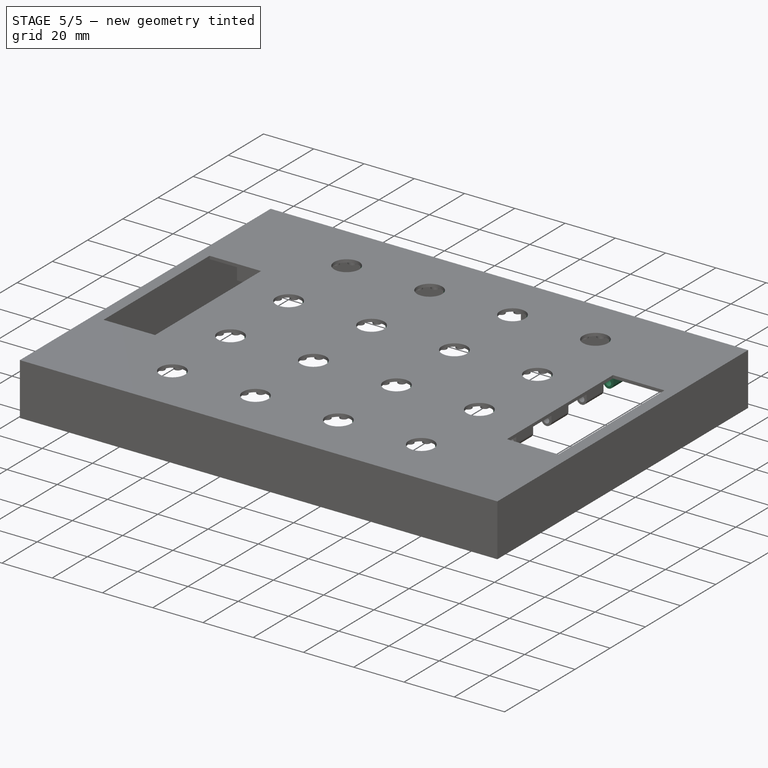
[diagram: stage 5 of 5 — iso view after this stage's code; geometry added in this stage tinted green]
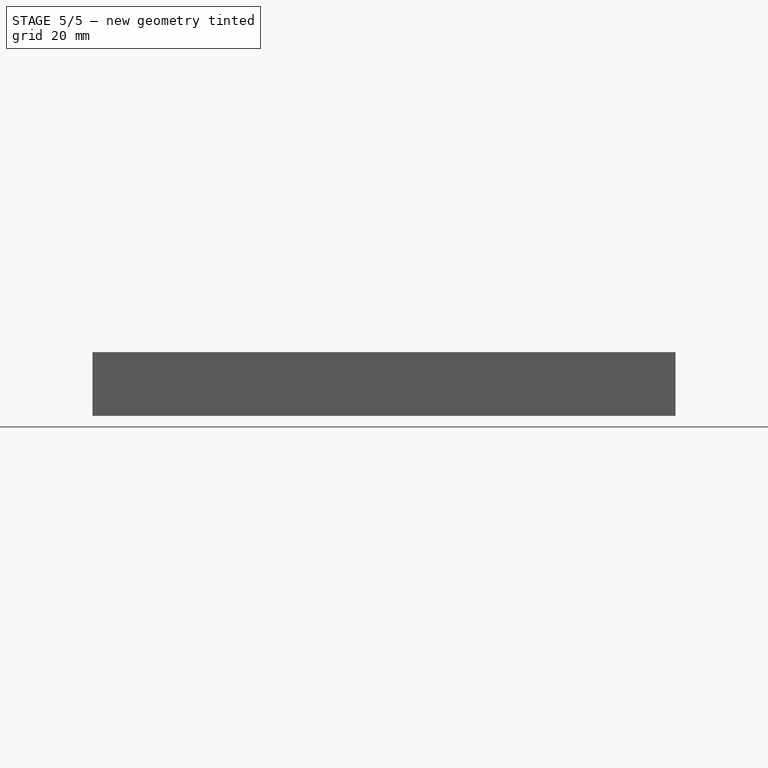
[diagram: stage 5 of 5 — front view after this stage's code; geometry added in this stage tinted green]
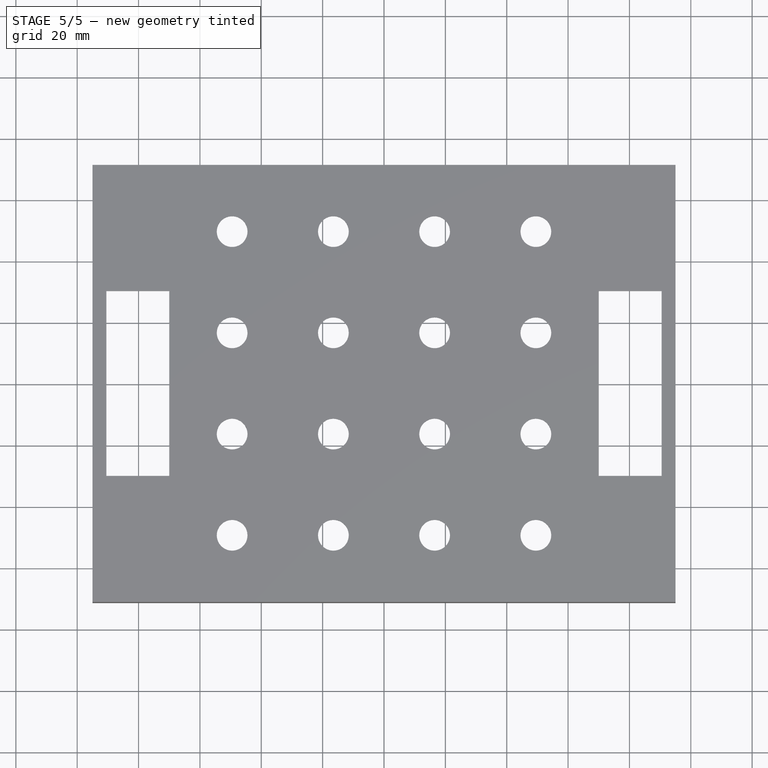
[diagram: stage 5 of 5 — top view after this stage's code; geometry added in this stage tinted green]
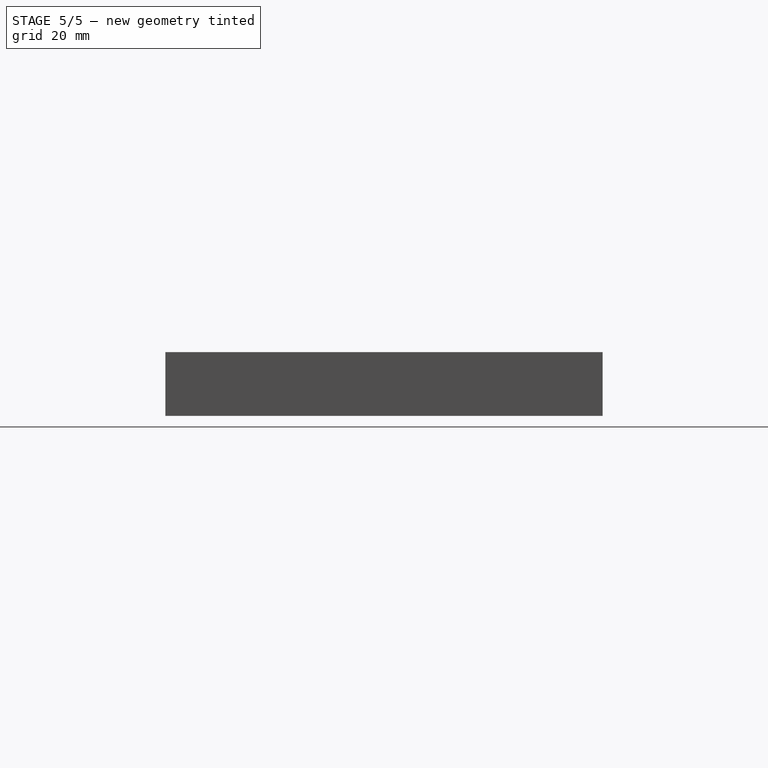
[diagram: stage 5 of 5 — right view after this stage's code; geometry added in this stage tinted green]
FEATURE [PartDesign::MultiTransform] MultiTransform003
  BaseFeature = -> Pad009
  Originals = -> [Pad007,Pad009]
  Refine = true
  Suppressed = false
  TransformMode = 0
  Transformations = -> [Mirrored002,Mirrored003]
FEATURE [PartDesign::Pocket] Pocket001
  BaseFeature = -> MultiTransform003
  Direction = (0,0,-1)
  Length = 12.5
  Length2 = 5
  Profile = -> Sketch011
  ReferenceAxis = -> Sketch011 [N_Axis]
  Refine = true
  Reversed = true
  Suppressed = false
  Type = 0
  expr: Length = <<sizes>>.heightUnder - 0.5
FEATURE [PartDesign::Pad] Pad008
  BaseFeature = -> Pocket001
  Direction = (0,0,1)
  Length = 3.5
  Length2 = 10
  Profile = -> Sketch012
  ReferenceAxis = -> Sketch012 [N_Axis]
  Refine = true
  Reversed = true
  Suppressed = false
  Type = 0
  expr: Length = <<sizes>>.heightOver - <<sizes>>.ledHeight
FEATURE [PartDesign::MultiTransform] MultiTransform004
  BaseFeature = -> Pad008
  Originals = -> [Pad008]
  Refine = true
  Suppressed = false
  TransformMode = 0
  Transformations = -> [LinearPattern005,LinearPattern006]
FEATURE [PartDesign::Body] Body
  AllowCompound = false
  Group = -> [Pad001,Pad006,Sketch,Pad,Sketch001,Sketch002,Pocket,MultiTransform,LinearPattern,LinearPattern001,Sketch003,Pad002,PolarPattern,Sketch004,DatumLine,Pad003,MultiTransform001,PolarPattern001,LinearPattern002,LinearPattern003,Chamfer,Sketch005,Pad004,Sketch009,MultiTransform002,LinearPattern004,Mirrored,Mirrored001,Sketch010,DatumPlane,Pad007,Pad009,MultiTransform003,Mirrored002,Mirrored003,+9 more]
  Origin = -> Origin
  Tip = -> MultiTransform004
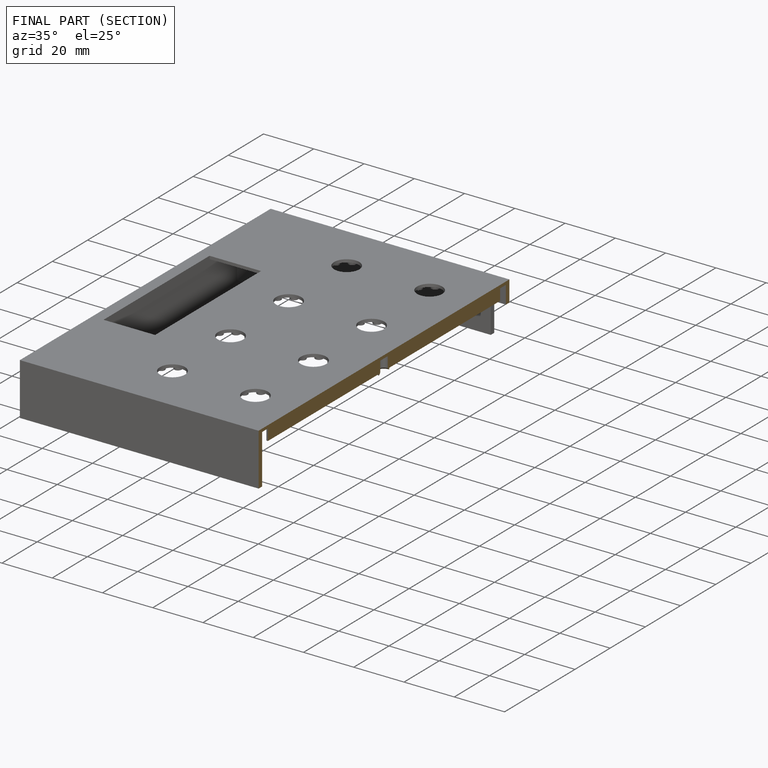
[diagram: finished part — half-section view (interior)]
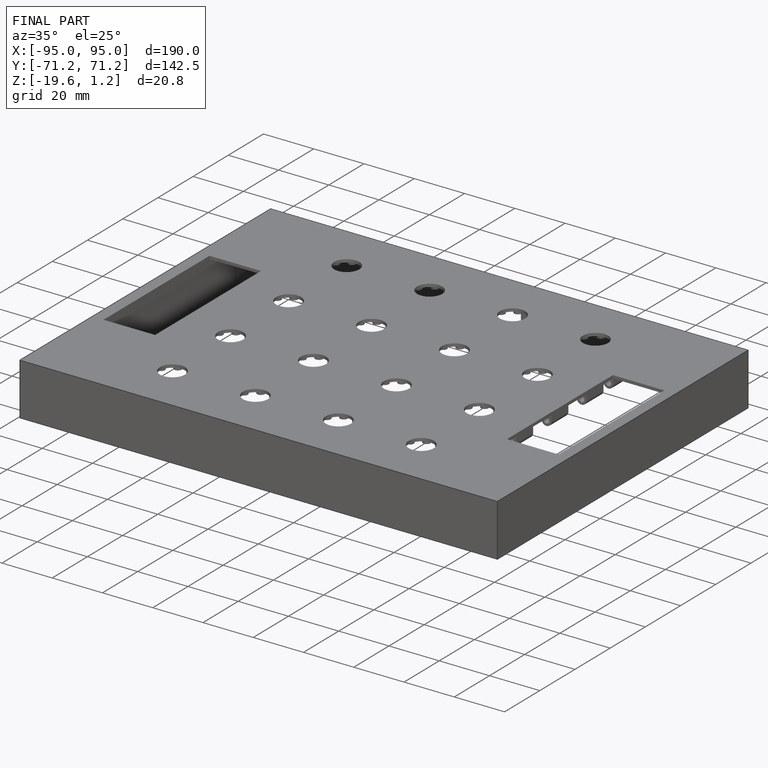
[diagram: finished part — iso view with bounding-box wireframe]
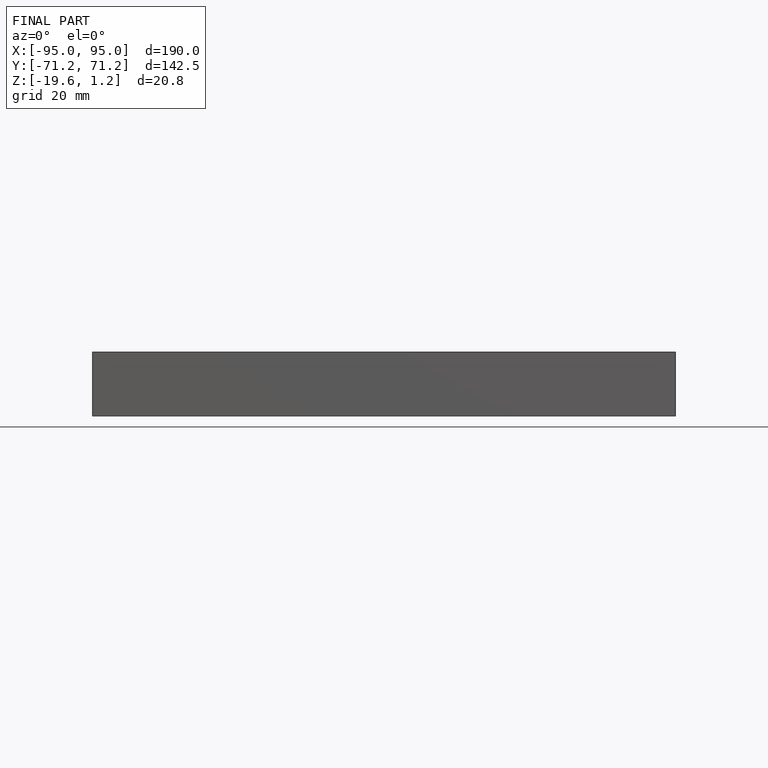
[diagram: finished part — front view with bounding-box wireframe]
